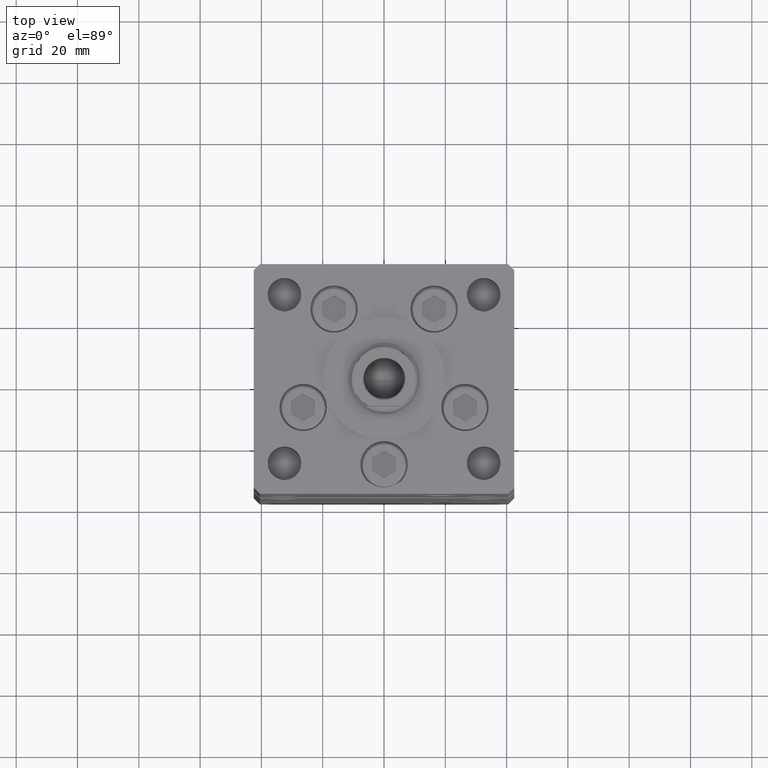
[diagram: clean part render]
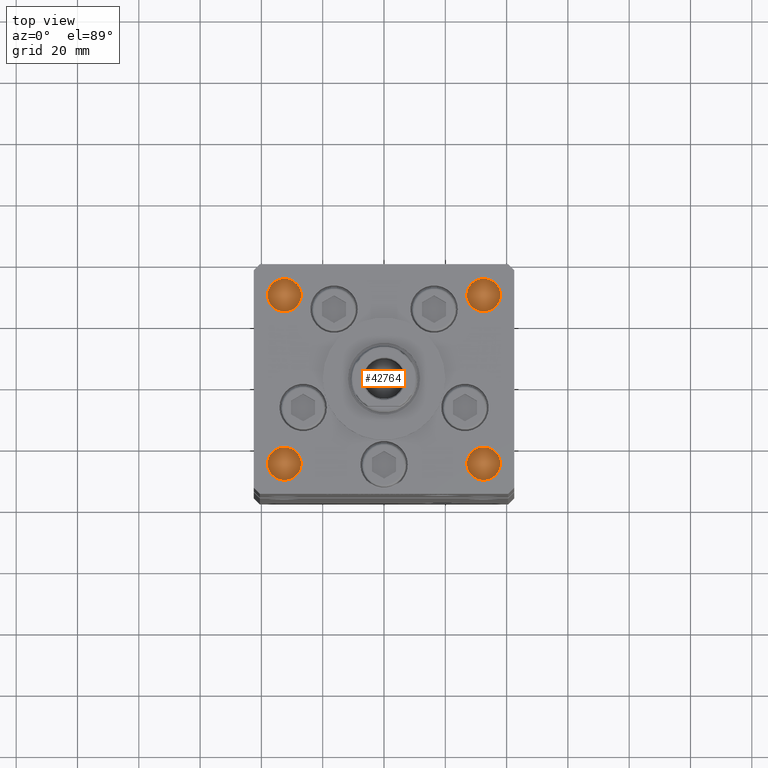
[diagram: same view with one face highlighted and labeled with its STEP entity id]
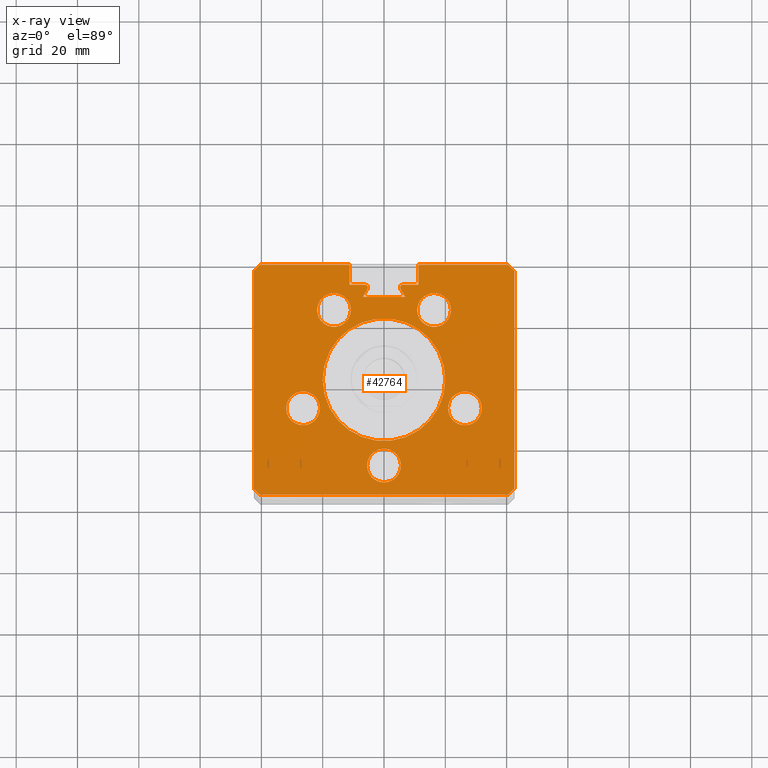
[diagram: x-ray of the same camera — body ghosted, the highlighted face saturated]
A machine part, top view. The second image highlights one B-rep face of the part: STEP entity #42764.
The next image is the same camera in x-ray: the body ghosted, the highlighted face saturated — about 0% of this face is hidden behind the body in this view.
In plain terms, the highlighted planar face has unit normal (0, 0, -1).
Its self-contained STEP definition (entity closure, byte-faithful):
#722 = EDGE_CURVE ( 'NONE', #6703, #35270, #32410, .T. ) ;
#774 = CARTESIAN_POINT ( 'NONE',  ( -11.24999999999999822, 37.50000000000000000, 168.5000000000000000 ) ) ;
#954 = VERTEX_POINT ( 'NONE', #31013 ) ;
#1034 = DIRECTION ( 'NONE',  ( 1.000000000000000000, 0.000000000000000000, 0.000000000000000000 ) ) ;
#1190 = EDGE_CURVE ( 'NONE', #2527, #12366, #9985, .T. ) ;
#1601 = EDGE_CURVE ( 'NONE', #20776, #23814, #52403, .T. ) ;
#1632 = AXIS2_PLACEMENT_3D ( 'NONE', #10695, #22546, #22286 ) ;
#1867 = DIRECTION ( 'NONE',  ( -1.000000000000000000, 0.000000000000000000, 0.000000000000000000 ) ) ;
#2011 = ORIENTED_EDGE ( 'NONE', *, *, #12803, .T. ) ;
#2328 = VERTEX_POINT ( 'NONE', #31251 ) ;
#2523 = EDGE_CURVE ( 'NONE', #52879, #49886, #18684, .T. ) ;
#2527 = VERTEX_POINT ( 'NONE', #41722 ) ;
#2575 = VECTOR ( 'NONE', #16017, 1000.000000000000000 ) ;
#2801 = CARTESIAN_POINT ( 'NONE',  ( 40.50000000000000711, 37.50000000000000000, 168.5000000000000000 ) ) ;
#3056 = ORIENTED_EDGE ( 'NONE', *, *, #13307, .F. ) ;
#3190 = AXIS2_PLACEMENT_3D ( 'NONE', #29560, #45972, #17979 ) ;
#3226 = DIRECTION ( 'NONE',  ( 0.7071067811865474617, -0.7071067811865474617, 0.000000000000000000 ) ) ;
#3347 = FACE_OUTER_BOUND ( 'NONE', #15424, .T. ) ;
#3483 = EDGE_CURVE ( 'NONE', #32761, #11899, #53243, .T. ) ;
#3727 = CARTESIAN_POINT ( 'NONE',  ( 0.000000000000000000, 31.00000000000000000, 168.5000000000000000 ) ) ;
#4141 = LINE ( 'NONE', #37228, #24401 ) ;
#4218 = DIRECTION ( 'NONE',  ( 0.000000000000000000, 0.000000000000000000, -1.000000000000000000 ) ) ;
#4275 = DIRECTION ( 'NONE',  ( 0.000000000000000000, 0.000000000000000000, -1.000000000000000000 ) ) ;
#4431 = DIRECTION ( 'NONE',  ( 1.000000000000000000, 0.000000000000000000, 0.000000000000000000 ) ) ;
#5052 = ORIENTED_EDGE ( 'NONE', *, *, #27726, .F. ) ;
#5244 = VERTEX_POINT ( 'NONE', #35900 ) ;
#5381 = CIRCLE ( 'NONE', #35451, 5.499999999999998224 ) ;
#5692 = ORIENTED_EDGE ( 'NONE', *, *, #48606, .F. ) ;
#6021 = ORIENTED_EDGE ( 'NONE', *, *, #40262, .F. ) ;
#6054 = VECTOR ( 'NONE', #37085, 1000.000000000000000 ) ;
#6129 = LINE ( 'NONE', #19022, #35074 ) ;
#6703 = VERTEX_POINT ( 'NONE', #12666 ) ;
#6764 = DIRECTION ( 'NONE',  ( 1.000000000000000000, 0.000000000000000000, 0.000000000000000000 ) ) ;
#6890 = VERTEX_POINT ( 'NONE', #28987 ) ;
#6926 = CARTESIAN_POINT ( 'NONE',  ( -11.24999999999999822, 31.00000000000000000, 168.5000000000000000 ) ) ;
#6935 = CARTESIAN_POINT ( 'NONE',  ( 40.50000000000000711, 37.50000000000000000, 168.5000000000000000 ) ) ;
#6961 = EDGE_LOOP ( 'NONE', ( #39575, #5692 ) ) ;
#6965 = CARTESIAN_POINT ( 'NONE',  ( -31.89865316429776954, -9.333333333333342807, 168.5000000000000000 ) ) ;
#6980 = CIRCLE ( 'NONE', #51649, 5.500000000000000000 ) ;
#7040 = DIRECTION ( 'NONE',  ( 1.000000000000000000, 0.000000000000000000, 0.000000000000000000 ) ) ;
#7129 = CIRCLE ( 'NONE', #50957, 5.499999999999998224 ) ;
#7210 = EDGE_LOOP ( 'NONE', ( #7544, #34292 ) ) ;
#7544 = ORIENTED_EDGE ( 'NONE', *, *, #17631, .F. ) ;
#7668 = CIRCLE ( 'NONE', #23146, 5.500000000000000000 ) ;
#8095 = EDGE_CURVE ( 'NONE', #26343, #6890, #27082, .T. ) ;
#8151 = LINE ( 'NONE', #20787, #9556 ) ;
#8182 = CARTESIAN_POINT ( 'NONE',  ( -11.24999999999999822, 37.50000000000000000, 168.5000000000000000 ) ) ;
#8240 = CARTESIAN_POINT ( 'NONE',  ( -6.183333333333997928, 30.06666666666599852, 168.5000000000000000 ) ) ;
#8797 = DIRECTION ( 'NONE',  ( -0.000000000000000000, 0.000000000000000000, 1.000000000000000000 ) ) ;
#8894 = VERTEX_POINT ( 'NONE', #25858 ) ;
#8997 = ORIENTED_EDGE ( 'NONE', *, *, #48822, .F. ) ;
#9218 = ORIENTED_EDGE ( 'NONE', *, *, #34839, .T. ) ;
#9482 = CARTESIAN_POINT ( 'NONE',  ( -20.00000000000000000, 0.000000000000000000, 168.5000000000000000 ) ) ;
#9556 = VECTOR ( 'NONE', #12710, 1000.000000000000000 ) ;
#9637 = ORIENTED_EDGE ( 'NONE', *, *, #46473, .F. ) ;
#9765 = DIRECTION ( 'NONE',  ( -3.909236002201255146E-16, -1.000000000000000000, 0.000000000000000000 ) ) ;
#9904 = DIRECTION ( 'NONE',  ( 1.000000000000000000, 0.000000000000000000, 0.000000000000000000 ) ) ;
#9985 = CIRCLE ( 'NONE', #44463, 20.00000000000000000 ) ;
#9996 = EDGE_LOOP ( 'NONE', ( #48411, #10073 ) ) ;
#10073 = ORIENTED_EDGE ( 'NONE', *, *, #47804, .F. ) ;
#10088 = EDGE_CURVE ( 'NONE', #24602, #39513, #29148, .T. ) ;
#10419 = EDGE_CURVE ( 'NONE', #5244, #19900, #7668, .T. ) ;
#10695 = CARTESIAN_POINT ( 'NONE',  ( -26.39865316429776954, -9.333333333333342807, 168.5000000000000000 ) ) ;
#11095 = CARTESIAN_POINT ( 'NONE',  ( 10.82291334290543894, 22.75000000000000000, 168.5000000000000000 ) ) ;
#11118 = ORIENTED_EDGE ( 'NONE', *, *, #10088, .T. ) ;
#11218 = DIRECTION ( 'NONE',  ( 0.000000000000000000, 0.000000000000000000, 1.000000000000000000 ) ) ;
#11403 = PLANE ( 'NONE',  #50043 ) ;
#11658 = DIRECTION ( 'NONE',  ( -1.000000000000000000, 0.000000000000000000, -0.000000000000000000 ) ) ;
#11829 = ORIENTED_EDGE ( 'NONE', *, *, #47884, .T. ) ;
#11899 = VERTEX_POINT ( 'NONE', #13278 ) ;
#12192 = DIRECTION ( 'NONE',  ( 1.000000000000000000, 0.000000000000000000, 0.000000000000000000 ) ) ;
#12308 = EDGE_CURVE ( 'NONE', #39513, #26343, #20058, .T. ) ;
#12343 = DIRECTION ( 'NONE',  ( 0.000000000000000000, 0.000000000000000000, 1.000000000000000000 ) ) ;
#12366 = VERTEX_POINT ( 'NONE', #9482 ) ;
#12525 = DIRECTION ( 'NONE',  ( 0.000000000000000000, 0.000000000000000000, 1.000000000000000000 ) ) ;
#12577 = CARTESIAN_POINT ( 'NONE',  ( 26.39865316429776954, -9.333333333333339255, 168.5000000000000000 ) ) ;
#12644 = VERTEX_POINT ( 'NONE', #42237 ) ;
#12666 = CARTESIAN_POINT ( 'NONE',  ( -10.82291334290543539, 22.74999999999999645, 168.5000000000000000 ) ) ;
#12710 = DIRECTION ( 'NONE',  ( -0.000000000000000000, -1.000000000000000000, 0.000000000000000000 ) ) ;
#12801 = DIRECTION ( 'NONE',  ( 1.000000000000000000, 0.000000000000000000, 0.000000000000000000 ) ) ;
#12803 = EDGE_CURVE ( 'NONE', #21457, #26333, #50826, .T. ) ;
#13220 = CARTESIAN_POINT ( 'NONE',  ( 1.714505518806294638E-15, -28.00000000000000000, 168.5000000000000000 ) ) ;
#13278 = CARTESIAN_POINT ( 'NONE',  ( -40.49999999999998579, -37.50000000000000711, 168.5000000000000000 ) ) ;
#13307 = EDGE_CURVE ( 'NONE', #47627, #2328, #44792, .T. ) ;
#13936 = AXIS2_PLACEMENT_3D ( 'NONE', #12577, #20119, #36290 ) ;
#13970 = ORIENTED_EDGE ( 'NONE', *, *, #49280, .T. ) ;
#14169 = ORIENTED_EDGE ( 'NONE', *, *, #42176, .F. ) ;
#14436 = LINE ( 'NONE', #35168, #21516 ) ;
#14951 = CIRCLE ( 'NONE', #26146, 5.499999999999998224 ) ;
#15032 = CARTESIAN_POINT ( 'NONE',  ( 6.183333333333997928, 31.00000000000000000, 168.5000000000000000 ) ) ;
#15036 = CARTESIAN_POINT ( 'NONE',  ( -11.24999999999999822, 0.000000000000000000, 168.5000000000000000 ) ) ;
#15075 = EDGE_CURVE ( 'NONE', #39654, #44337, #20112, .T. ) ;
#15424 = EDGE_LOOP ( 'NONE', ( #25934, #13970, #27059, #11829, #19710, #36664, #42184, #3056, #14169, #45677, #36420, #9218, #2011, #28111, #11118, #47429, #52801, #8997, #9637 ) ) ;
#15433 = DIRECTION ( 'NONE',  ( 0.000000000000000000, 0.000000000000000000, -1.000000000000000000 ) ) ;
#15997 = CARTESIAN_POINT ( 'NONE',  ( 20.89865316429777309, -9.333333333333339255, 168.5000000000000000 ) ) ;
#16017 = DIRECTION ( 'NONE',  ( -1.000000000000000000, 0.000000000000000000, 0.000000000000000000 ) ) ;
#16764 = DIRECTION ( 'NONE',  ( -0.7071067811865500152, -0.7071067811865451302, 0.000000000000000000 ) ) ;
#17631 = EDGE_CURVE ( 'NONE', #49886, #52879, #7129, .T. ) ;
#17979 = DIRECTION ( 'NONE',  ( 1.000000000000000000, 0.000000000000000000, 0.000000000000000000 ) ) ;
#18001 = VECTOR ( 'NONE', #1867, 1000.000000000000000 ) ;
#18684 = CIRCLE ( 'NONE', #35014, 5.499999999999998224 ) ;
#18812 = CARTESIAN_POINT ( 'NONE',  ( -6.876153656360465938, 26.99999999999986855, 168.5000000000000000 ) ) ;
#18816 = DIRECTION ( 'NONE',  ( 0.000000000000000000, 1.000000000000000000, 0.000000000000000000 ) ) ;
#19022 = CARTESIAN_POINT ( 'NONE',  ( -40.49999999999998579, -37.50000000000000711, 168.5000000000000000 ) ) ;
#19305 = EDGE_CURVE ( 'NONE', #31294, #50182, #41278, .T. ) ;
#19349 = CARTESIAN_POINT ( 'NONE',  ( -42.49999999999998579, -35.50000000000000711, 168.5000000000000000 ) ) ;
#19390 = VECTOR ( 'NONE', #4431, 1000.000000000000000 ) ;
#19710 = ORIENTED_EDGE ( 'NONE', *, *, #33443, .T. ) ;
#19900 = VERTEX_POINT ( 'NONE', #43788 ) ;
#19913 = VECTOR ( 'NONE', #9765, 1000.000000000000000 ) ;
#20058 = LINE ( 'NONE', #52888, #2575 ) ;
#20112 = LINE ( 'NONE', #3727, #6054 ) ;
#20119 = DIRECTION ( 'NONE',  ( 0.000000000000000000, 0.000000000000000000, 1.000000000000000000 ) ) ;
#20259 = DIRECTION ( 'NONE',  ( 0.4999999999999993894, -0.8660254037844389297, 0.000000000000000000 ) ) ;
#20464 = DIRECTION ( 'NONE',  ( 0.000000000000000000, 0.000000000000000000, 1.000000000000000000 ) ) ;
#20645 = VERTEX_POINT ( 'NONE', #15997 ) ;
#20776 = VERTEX_POINT ( 'NONE', #2801 ) ;
#20787 = CARTESIAN_POINT ( 'NONE',  ( 11.24999999999999822, 0.000000000000000000, 168.5000000000000000 ) ) ;
#20917 = CIRCLE ( 'NONE', #26936, 0.9333333333340008142 ) ;
#20953 = CARTESIAN_POINT ( 'NONE',  ( -26.39865316429776954, -9.333333333333342807, 168.5000000000000000 ) ) ;
#20965 = CIRCLE ( 'NONE', #34715, 5.500000000000000000 ) ;
#21113 = CARTESIAN_POINT ( 'NONE',  ( 11.24999999999999822, 31.00000000000000000, 168.5000000000000000 ) ) ;
#21254 = CARTESIAN_POINT ( 'NONE',  ( -21.82291334290543361, 22.74999999999999645, 168.5000000000000000 ) ) ;
#21269 = VECTOR ( 'NONE', #47824, 1000.000000000000114 ) ;
#21299 = CARTESIAN_POINT ( 'NONE',  ( 0.000000000000000000, 0.000000000000000000, 168.5000000000000000 ) ) ;
#21457 = VERTEX_POINT ( 'NONE', #21113 ) ;
#21516 = VECTOR ( 'NONE', #23327, 1000.000000000000000 ) ;
#21681 = DIRECTION ( 'NONE',  ( 1.000000000000000000, 0.000000000000000000, 0.000000000000000000 ) ) ;
#21899 = VECTOR ( 'NONE', #18816, 1000.000000000000000 ) ;
#22223 = CARTESIAN_POINT ( 'NONE',  ( -6.183333333333997928, 31.00000000000000000, 168.5000000000000000 ) ) ;
#22286 = DIRECTION ( 'NONE',  ( 1.000000000000000000, 0.000000000000000000, 0.000000000000000000 ) ) ;
#22546 = DIRECTION ( 'NONE',  ( 0.000000000000000000, 0.000000000000000000, 1.000000000000000000 ) ) ;
#22656 = ORIENTED_EDGE ( 'NONE', *, *, #44500, .F. ) ;
#23146 = AXIS2_PLACEMENT_3D ( 'NONE', #38418, #46735, #38677 ) ;
#23254 = FACE_BOUND ( 'NONE', #45996, .T. ) ;
#23327 = DIRECTION ( 'NONE',  ( 3.909236002201255146E-16, -1.000000000000000000, 0.000000000000000000 ) ) ;
#23405 = CARTESIAN_POINT ( 'NONE',  ( 6.876153656360465938, 26.99999999999986855, 168.5000000000000000 ) ) ;
#23430 = ORIENTED_EDGE ( 'NONE', *, *, #10419, .F. ) ;
#23812 = LINE ( 'NONE', #44785, #37770 ) ;
#23814 = VERTEX_POINT ( 'NONE', #27816 ) ;
#24091 = ORIENTED_EDGE ( 'NONE', *, *, #1190, .F. ) ;
#24342 = CARTESIAN_POINT ( 'NONE',  ( 42.49999999999998579, -35.50000000000000711, 168.5000000000000000 ) ) ;
#24401 = VECTOR ( 'NONE', #16764, 1000.000000000000114 ) ;
#24602 = VERTEX_POINT ( 'NONE', #29022 ) ;
#24841 = DIRECTION ( 'NONE',  ( 0.000000000000000000, 0.000000000000000000, 1.000000000000000000 ) ) ;
#24884 = DIRECTION ( 'NONE',  ( -0.7071067811865474617, -0.7071067811865474617, 0.000000000000000000 ) ) ;
#25326 = DIRECTION ( 'NONE',  ( 1.000000000000000000, 0.000000000000000000, 0.000000000000000000 ) ) ;
#25858 = CARTESIAN_POINT ( 'NONE',  ( -20.89865316429777309, -9.333333333333342807, 168.5000000000000000 ) ) ;
#25899 = LINE ( 'NONE', #46602, #19913 ) ;
#25934 = ORIENTED_EDGE ( 'NONE', *, *, #15075, .T. ) ;
#26146 = AXIS2_PLACEMENT_3D ( 'NONE', #27628, #11218, #36501 ) ;
#26333 = VERTEX_POINT ( 'NONE', #15032 ) ;
#26343 = VERTEX_POINT ( 'NONE', #18812 ) ;
#26754 = EDGE_CURVE ( 'NONE', #11899, #2328, #6129, .T. ) ;
#26936 = AXIS2_PLACEMENT_3D ( 'NONE', #27201, #30721, #6764 ) ;
#27059 = ORIENTED_EDGE ( 'NONE', *, *, #19305, .F. ) ;
#27082 = LINE ( 'NONE', #39473, #52267 ) ;
#27201 = CARTESIAN_POINT ( 'NONE',  ( 6.183333333333997928, 30.06666666666599852, 168.5000000000000000 ) ) ;
#27628 = CARTESIAN_POINT ( 'NONE',  ( 26.39865316429776954, -9.333333333333339255, 168.5000000000000000 ) ) ;
#27726 = EDGE_CURVE ( 'NONE', #46262, #8894, #41149, .T. ) ;
#27816 = CARTESIAN_POINT ( 'NONE',  ( 42.50000000000001421, 35.50000000000000711, 168.5000000000000000 ) ) ;
#28111 = ORIENTED_EDGE ( 'NONE', *, *, #45939, .F. ) ;
#28334 = FACE_BOUND ( 'NONE', #6961, .T. ) ;
#28604 = CARTESIAN_POINT ( 'NONE',  ( -16.32291334290543361, 22.74999999999999645, 168.5000000000000000 ) ) ;
#28987 = CARTESIAN_POINT ( 'NONE',  ( -5.375042956467944499, 29.59999999999899600, 168.5000000000000000 ) ) ;
#29022 = CARTESIAN_POINT ( 'NONE',  ( 5.375042956467944499, 29.59999999999899600, 168.5000000000000000 ) ) ;
#29148 = LINE ( 'NONE', #44488, #52298 ) ;
#29495 = AXIS2_PLACEMENT_3D ( 'NONE', #36514, #8797, #32471 ) ;
#29560 = CARTESIAN_POINT ( 'NONE',  ( -16.32291334290543361, 22.74999999999999645, 168.5000000000000000 ) ) ;
#30357 = EDGE_CURVE ( 'NONE', #40705, #20776, #23812, .T. ) ;
#30450 = AXIS2_PLACEMENT_3D ( 'NONE', #8240, #4218, #12801 ) ;
#30721 = DIRECTION ( 'NONE',  ( 0.000000000000000000, 0.000000000000000000, -1.000000000000000000 ) ) ;
#31013 = CARTESIAN_POINT ( 'NONE',  ( -5.249999999999996447, 30.06666666666599852, 168.5000000000000000 ) ) ;
#31251 = CARTESIAN_POINT ( 'NONE',  ( 40.49999999999998579, -37.50000000000000711, 168.5000000000000000 ) ) ;
#31294 = VERTEX_POINT ( 'NONE', #49497 ) ;
#32381 = FACE_BOUND ( 'NONE', #7210, .T. ) ;
#32410 = CIRCLE ( 'NONE', #3190, 5.500000000000000000 ) ;
#32471 = DIRECTION ( 'NONE',  ( 1.000000000000000000, 0.000000000000000000, 0.000000000000000000 ) ) ;
#32761 = VERTEX_POINT ( 'NONE', #42062 ) ;
#33443 = EDGE_CURVE ( 'NONE', #40647, #32761, #14436, .T. ) ;
#33525 = VECTOR ( 'NONE', #24884, 1000.000000000000114 ) ;
#33532 = CARTESIAN_POINT ( 'NONE',  ( 16.32291334290543361, 22.75000000000000000, 168.5000000000000000 ) ) ;
#34292 = ORIENTED_EDGE ( 'NONE', *, *, #2523, .F. ) ;
#34715 = AXIS2_PLACEMENT_3D ( 'NONE', #28604, #24841, #12192 ) ;
#34839 = EDGE_CURVE ( 'NONE', #40705, #21457, #8151, .T. ) ;
#35014 = AXIS2_PLACEMENT_3D ( 'NONE', #48987, #20464, #7040 ) ;
#35074 = VECTOR ( 'NONE', #9904, 1000.000000000000000 ) ;
#35168 = CARTESIAN_POINT ( 'NONE',  ( -42.50000000000001421, 35.50000000000000711, 168.5000000000000000 ) ) ;
#35270 = VERTEX_POINT ( 'NONE', #21254 ) ;
#35451 = AXIS2_PLACEMENT_3D ( 'NONE', #20953, #12343, #45973 ) ;
#35478 = CIRCLE ( 'NONE', #29495, 20.00000000000000000 ) ;
#35900 = CARTESIAN_POINT ( 'NONE',  ( -5.499999999999998224, -28.00000000000000000, 168.5000000000000000 ) ) ;
#35959 = ORIENTED_EDGE ( 'NONE', *, *, #44262, .F. ) ;
#36290 = DIRECTION ( 'NONE',  ( 1.000000000000000000, 0.000000000000000000, 0.000000000000000000 ) ) ;
#36420 = ORIENTED_EDGE ( 'NONE', *, *, #30357, .F. ) ;
#36487 = EDGE_LOOP ( 'NONE', ( #6021, #23430 ) ) ;
#36501 = DIRECTION ( 'NONE',  ( 1.000000000000000000, 0.000000000000000000, 0.000000000000000000 ) ) ;
#36514 = CARTESIAN_POINT ( 'NONE',  ( 0.000000000000000000, 0.000000000000000000, 168.5000000000000000 ) ) ;
#36664 = ORIENTED_EDGE ( 'NONE', *, *, #3483, .T. ) ;
#37085 = DIRECTION ( 'NONE',  ( -1.000000000000000000, 0.000000000000000000, 0.000000000000000000 ) ) ;
#37228 = CARTESIAN_POINT ( 'NONE',  ( -40.50000000000000711, 37.50000000000000000, 168.5000000000000000 ) ) ;
#37713 = DIRECTION ( 'NONE',  ( 1.000000000000000000, 0.000000000000000000, 0.000000000000000000 ) ) ;
#37770 = VECTOR ( 'NONE', #40497, 1000.000000000000000 ) ;
#37984 = DIRECTION ( 'NONE',  ( 0.000000000000000000, 0.000000000000000000, 1.000000000000000000 ) ) ;
#38418 = CARTESIAN_POINT ( 'NONE',  ( 1.714505518806294638E-15, -28.00000000000000000, 168.5000000000000000 ) ) ;
#38606 = CARTESIAN_POINT ( 'NONE',  ( 42.49999999999998579, -35.50000000000000711, 168.5000000000000000 ) ) ;
#38677 = DIRECTION ( 'NONE',  ( 1.000000000000000000, 0.000000000000000000, 0.000000000000000000 ) ) ;
#38710 = CARTESIAN_POINT ( 'NONE',  ( 0.000000000000000000, 31.00000000000000000, 168.5000000000000000 ) ) ;
#39473 = CARTESIAN_POINT ( 'NONE',  ( -16.84845819336020867, 9.727461873366658907, 168.5000000000000000 ) ) ;
#39513 = VERTEX_POINT ( 'NONE', #23405 ) ;
#39575 = ORIENTED_EDGE ( 'NONE', *, *, #42569, .F. ) ;
#39654 = VERTEX_POINT ( 'NONE', #22223 ) ;
#39666 = CARTESIAN_POINT ( 'NONE',  ( 0.000000000000000000, 0.000000000000000000, 168.5000000000000000 ) ) ;
#39931 = FACE_BOUND ( 'NONE', #52606, .T. ) ;
#40262 = EDGE_CURVE ( 'NONE', #19900, #5244, #6980, .T. ) ;
#40497 = DIRECTION ( 'NONE',  ( 1.000000000000000000, 0.000000000000000000, 0.000000000000000000 ) ) ;
#40647 = VERTEX_POINT ( 'NONE', #46509 ) ;
#40705 = VERTEX_POINT ( 'NONE', #44318 ) ;
#41149 = CIRCLE ( 'NONE', #1632, 5.499999999999998224 ) ;
#41278 = LINE ( 'NONE', #8182, #19390 ) ;
#41488 = DIRECTION ( 'NONE',  ( -0.000000000000000000, 0.000000000000000000, 1.000000000000000000 ) ) ;
#41722 = CARTESIAN_POINT ( 'NONE',  ( 20.00000000000000000, 2.449293598294706513E-15, 168.5000000000000000 ) ) ;
#41829 = VECTOR ( 'NONE', #3226, 1000.000000000000114 ) ;
#42062 = CARTESIAN_POINT ( 'NONE',  ( -42.49999999999998579, -35.50000000000000711, 168.5000000000000000 ) ) ;
#42176 = EDGE_CURVE ( 'NONE', #23814, #47627, #25899, .T. ) ;
#42184 = ORIENTED_EDGE ( 'NONE', *, *, #26754, .T. ) ;
#42237 = CARTESIAN_POINT ( 'NONE',  ( 31.89865316429776954, -9.333333333333339255, 168.5000000000000000 ) ) ;
#42569 = EDGE_CURVE ( 'NONE', #12644, #20645, #52616, .T. ) ;
#42764 = ADVANCED_FACE ( 'NONE', ( #23254, #44750, #28334, #32381, #48792, #3347, #39931 ), #11403, .F. ) ;
#43788 = CARTESIAN_POINT ( 'NONE',  ( 5.500000000000001776, -28.00000000000000000, 168.5000000000000000 ) ) ;
#44262 = EDGE_CURVE ( 'NONE', #8894, #46262, #5381, .T. ) ;
#44318 = CARTESIAN_POINT ( 'NONE',  ( 11.24999999999999112, 37.50000000000000000, 168.5000000000000000 ) ) ;
#44337 = VERTEX_POINT ( 'NONE', #6926 ) ;
#44463 = AXIS2_PLACEMENT_3D ( 'NONE', #21299, #41488, #37713 ) ;
#44488 = CARTESIAN_POINT ( 'NONE',  ( 16.84845819336020867, 9.727461873366658907, 168.5000000000000000 ) ) ;
#44500 = EDGE_CURVE ( 'NONE', #12366, #2527, #35478, .T. ) ;
#44750 = FACE_BOUND ( 'NONE', #36487, .T. ) ;
#44785 = CARTESIAN_POINT ( 'NONE',  ( -11.24999999999999822, 37.50000000000000000, 168.5000000000000000 ) ) ;
#44792 = LINE ( 'NONE', #24342, #33525 ) ;
#45677 = ORIENTED_EDGE ( 'NONE', *, *, #1601, .F. ) ;
#45692 = CARTESIAN_POINT ( 'NONE',  ( -6.183333333333997928, 30.06666666666599852, 168.5000000000000000 ) ) ;
#45939 = EDGE_CURVE ( 'NONE', #24602, #26333, #20917, .T. ) ;
#45972 = DIRECTION ( 'NONE',  ( 0.000000000000000000, 0.000000000000000000, 1.000000000000000000 ) ) ;
#45973 = DIRECTION ( 'NONE',  ( 1.000000000000000000, 0.000000000000000000, 0.000000000000000000 ) ) ;
#45996 = EDGE_LOOP ( 'NONE', ( #35959, #5052 ) ) ;
#46262 = VERTEX_POINT ( 'NONE', #6965 ) ;
#46473 = EDGE_CURVE ( 'NONE', #39654, #954, #49262, .T. ) ;
#46509 = CARTESIAN_POINT ( 'NONE',  ( -42.50000000000001421, 35.50000000000000711, 168.5000000000000000 ) ) ;
#46602 = CARTESIAN_POINT ( 'NONE',  ( 42.50000000000001421, 35.50000000000000711, 168.5000000000000000 ) ) ;
#46735 = DIRECTION ( 'NONE',  ( 0.000000000000000000, 0.000000000000000000, 1.000000000000000000 ) ) ;
#47429 = ORIENTED_EDGE ( 'NONE', *, *, #12308, .T. ) ;
#47528 = AXIS2_PLACEMENT_3D ( 'NONE', #45692, #4275, #1034 ) ;
#47627 = VERTEX_POINT ( 'NONE', #38606 ) ;
#47640 = CIRCLE ( 'NONE', #30450, 0.9333333333340008142 ) ;
#47804 = EDGE_CURVE ( 'NONE', #35270, #6703, #20965, .T. ) ;
#47824 = DIRECTION ( 'NONE',  ( 0.7071067811865500152, -0.7071067811865451302, 0.000000000000000000 ) ) ;
#47884 = EDGE_CURVE ( 'NONE', #31294, #40647, #4141, .T. ) ;
#48024 = CARTESIAN_POINT ( 'NONE',  ( 21.82291334290543361, 22.75000000000000000, 168.5000000000000000 ) ) ;
#48411 = ORIENTED_EDGE ( 'NONE', *, *, #722, .F. ) ;
#48606 = EDGE_CURVE ( 'NONE', #20645, #12644, #14951, .T. ) ;
#48792 = FACE_BOUND ( 'NONE', #9996, .T. ) ;
#48822 = EDGE_CURVE ( 'NONE', #954, #6890, #47640, .T. ) ;
#48987 = CARTESIAN_POINT ( 'NONE',  ( 16.32291334290543361, 22.75000000000000000, 168.5000000000000000 ) ) ;
#49262 = CIRCLE ( 'NONE', #47528, 0.9333333333340008142 ) ;
#49280 = EDGE_CURVE ( 'NONE', #44337, #50182, #51916, .T. ) ;
#49497 = CARTESIAN_POINT ( 'NONE',  ( -40.50000000000000711, 37.50000000000000000, 168.5000000000000000 ) ) ;
#49886 = VERTEX_POINT ( 'NONE', #48024 ) ;
#50043 = AXIS2_PLACEMENT_3D ( 'NONE', #39666, #15433, #11658 ) ;
#50182 = VERTEX_POINT ( 'NONE', #774 ) ;
#50826 = LINE ( 'NONE', #38710, #18001 ) ;
#50957 = AXIS2_PLACEMENT_3D ( 'NONE', #33532, #12525, #21681 ) ;
#51649 = AXIS2_PLACEMENT_3D ( 'NONE', #13220, #37984, #25326 ) ;
#51850 = DIRECTION ( 'NONE',  ( 0.4999999999999993894, 0.8660254037844389297, 0.000000000000000000 ) ) ;
#51916 = LINE ( 'NONE', #15036, #21899 ) ;
#52267 = VECTOR ( 'NONE', #51850, 1000.000000000000114 ) ;
#52298 = VECTOR ( 'NONE', #20259, 1000.000000000000114 ) ;
#52403 = LINE ( 'NONE', #6935, #21269 ) ;
#52606 = EDGE_LOOP ( 'NONE', ( #22656, #24091 ) ) ;
#52616 = CIRCLE ( 'NONE', #13936, 5.499999999999998224 ) ;
#52801 = ORIENTED_EDGE ( 'NONE', *, *, #8095, .T. ) ;
#52879 = VERTEX_POINT ( 'NONE', #11095 ) ;
#52888 = CARTESIAN_POINT ( 'NONE',  ( 0.000000000000000000, 26.99999999999986855, 168.5000000000000000 ) ) ;
#53243 = LINE ( 'NONE', #19349, #41829 ) ;